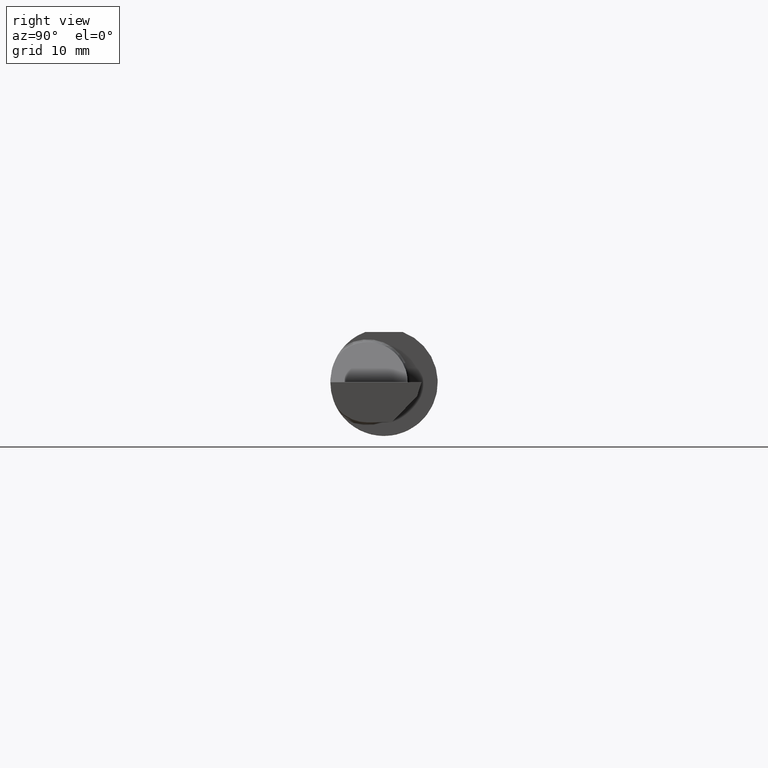
[diagram: clean part render]
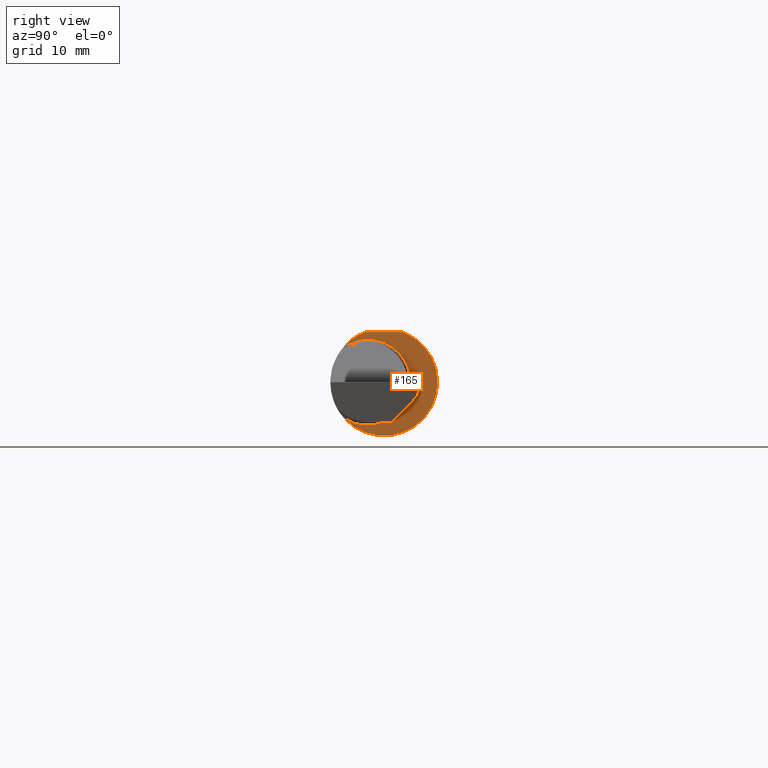
[diagram: same view with one face highlighted and labeled with its STEP entity id]
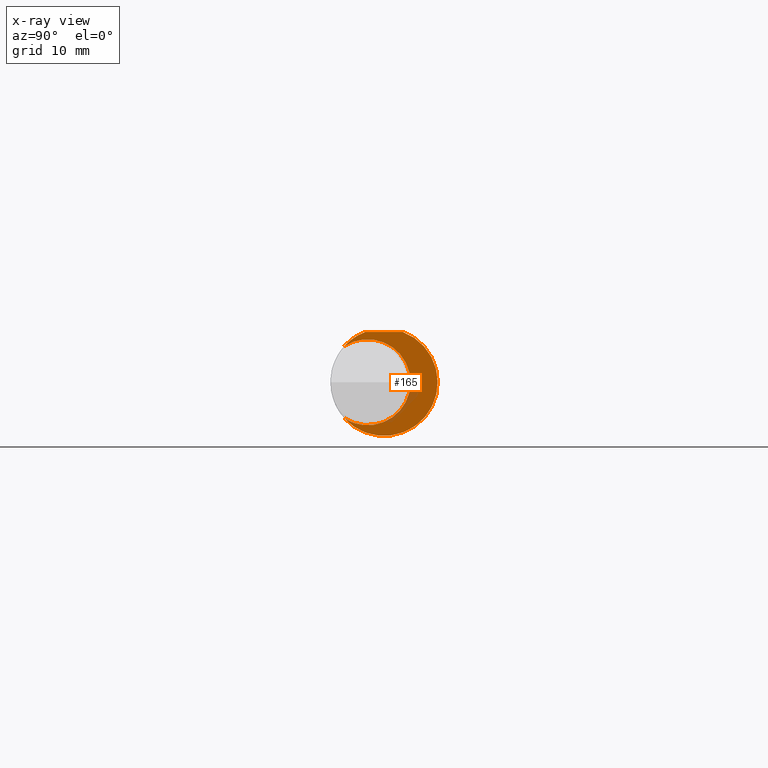
[diagram: x-ray of the same camera — body ghosted, the highlighted face saturated]
A machine part, right view. The second image highlights one B-rep face of the part: STEP entity #165.
The next image is the same camera in x-ray: the body ghosted, the highlighted face saturated — about 8% of this face is hidden behind the body in this view.
In plain terms, the highlighted planar face has unit normal (1, 0, 0).
Its self-contained STEP definition (entity closure, byte-faithful):
#14 = CARTESIAN_POINT ( 'NONE',  ( 1.949999999999999956, 0.2373500000000000332, 0.1753499999999999504 ) ) ;
#45 = EDGE_CURVE ( 'NONE', #553, #256, #318, .T. ) ;
#58 = DIRECTION ( 'NONE',  ( 1.000000000000000000, 6.829619984160658046E-18, 0.0000000000000000000 ) ) ;
#65 = CIRCLE ( 'NONE', #551, 0.1500499999999999889 ) ;
#83 = PLANE ( 'NONE',  #579 ) ;
#88 = DIRECTION ( 'NONE',  ( -6.829619984160658046E-18, 1.000000000000000000, 0.0000000000000000000 ) ) ;
#89 = VECTOR ( 'NONE', #182, 39.37007874015748143 ) ;
#102 = CARTESIAN_POINT ( 'NONE',  ( 1.949999999999999956, 0.09264999999999999625, 0.0000000000000000000 ) ) ;
#105 = EDGE_LOOP ( 'NONE', ( #227, #247, #411, #448 ) ) ;
#165 = ADVANCED_FACE ( 'NONE', ( #275 ), #83, .T. ) ;
#182 = DIRECTION ( 'NONE',  ( 6.829619984160658046E-18, -1.000000000000000000, 1.438723400918613551E-16 ) ) ;
#202 = CARTESIAN_POINT ( 'NONE',  ( 1.949999999999999956, -0.06597272163553659363, 0.1753499999999999781 ) ) ;
#205 = EDGE_CURVE ( 'NONE', #233, #553, #496, .T. ) ;
#227 = ORIENTED_EDGE ( 'NONE', *, *, #364, .T. ) ;
#233 = VERTEX_POINT ( 'NONE', #463 ) ;
#243 = CARTESIAN_POINT ( 'NONE',  ( 1.949999999999999956, -0.1383256097560975340, -0.1263568288047931809 ) ) ;
#247 = ORIENTED_EDGE ( 'NONE', *, *, #205, .T. ) ;
#256 = VERTEX_POINT ( 'NONE', #324 ) ;
#275 = FACE_OUTER_BOUND ( 'NONE', #105, .T. ) ;
#279 = EDGE_CURVE ( 'NONE', #256, #539, #65, .T. ) ;
#290 = CIRCLE ( 'NONE', #465, 0.1873499999999999888 ) ;
#318 = CIRCLE ( 'NONE', #473, 0.1873499999999999888 ) ;
#324 = CARTESIAN_POINT ( 'NONE',  ( 1.949999999999999956, -0.1383256097560975340, 0.1263568288047931809 ) ) ;
#336 = DIRECTION ( 'NONE',  ( 1.000000000000000000, 6.829619984160658046E-18, 0.0000000000000000000 ) ) ;
#354 = DIRECTION ( 'NONE',  ( 1.000000000000000000, 6.829619984160658046E-18, 0.0000000000000000000 ) ) ;
#364 = EDGE_CURVE ( 'NONE', #539, #233, #290, .T. ) ;
#373 = CARTESIAN_POINT ( 'NONE',  ( 1.949999999999999956, 0.0000000000000000000, 0.0000000000000000000 ) ) ;
#378 = DIRECTION ( 'NONE',  ( 0.0000000000000000000, 1.000000000000000000, 0.0000000000000000000 ) ) ;
#393 = CARTESIAN_POINT ( 'NONE',  ( 1.949999999999999956, -0.05739999999999999963, 0.0000000000000000000 ) ) ;
#405 = DIRECTION ( 'NONE',  ( -1.000000000000000000, -6.829619984160658046E-18, -0.0000000000000000000 ) ) ;
#407 = DIRECTION ( 'NONE',  ( 0.0000000000000000000, -1.000000000000000000, 0.0000000000000000000 ) ) ;
#411 = ORIENTED_EDGE ( 'NONE', *, *, #45, .T. ) ;
#448 = ORIENTED_EDGE ( 'NONE', *, *, #279, .T. ) ;
#463 = CARTESIAN_POINT ( 'NONE',  ( 1.949999999999999956, 0.06597272163553663527, 0.1753499999999999781 ) ) ;
#465 = AXIS2_PLACEMENT_3D ( 'NONE', #373, #336, #378 ) ;
#473 = AXIS2_PLACEMENT_3D ( 'NONE', #540, #354, #543 ) ;
#496 = LINE ( 'NONE', #14, #89 ) ;
#539 = VERTEX_POINT ( 'NONE', #243 ) ;
#540 = CARTESIAN_POINT ( 'NONE',  ( 1.949999999999999956, 0.0000000000000000000, 0.0000000000000000000 ) ) ;
#543 = DIRECTION ( 'NONE',  ( 0.0000000000000000000, 1.000000000000000000, 0.0000000000000000000 ) ) ;
#551 = AXIS2_PLACEMENT_3D ( 'NONE', #393, #405, #407 ) ;
#553 = VERTEX_POINT ( 'NONE', #202 ) ;
#579 = AXIS2_PLACEMENT_3D ( 'NONE', #102, #58, #88 ) ;